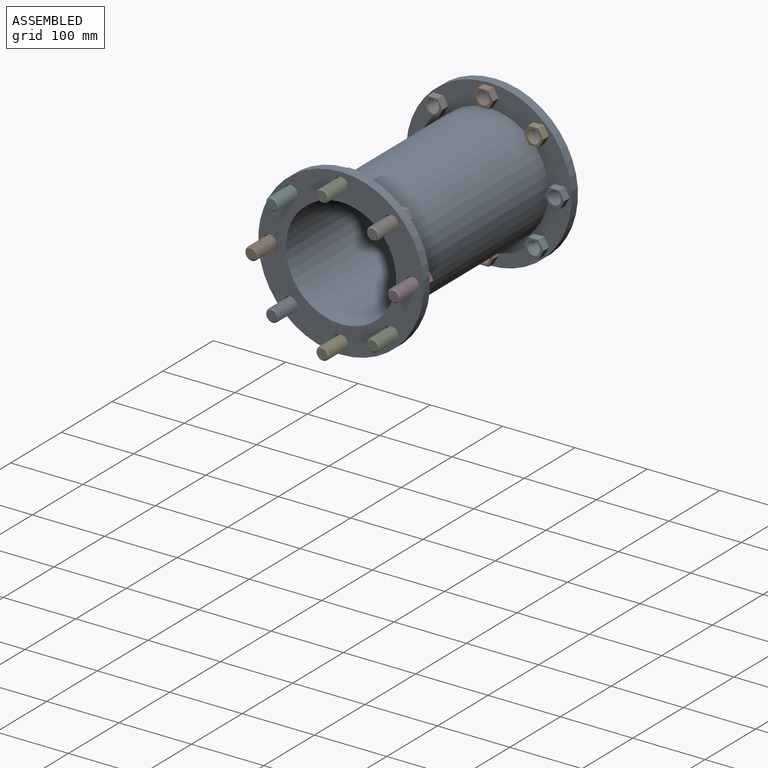
[diagram: assembled view]
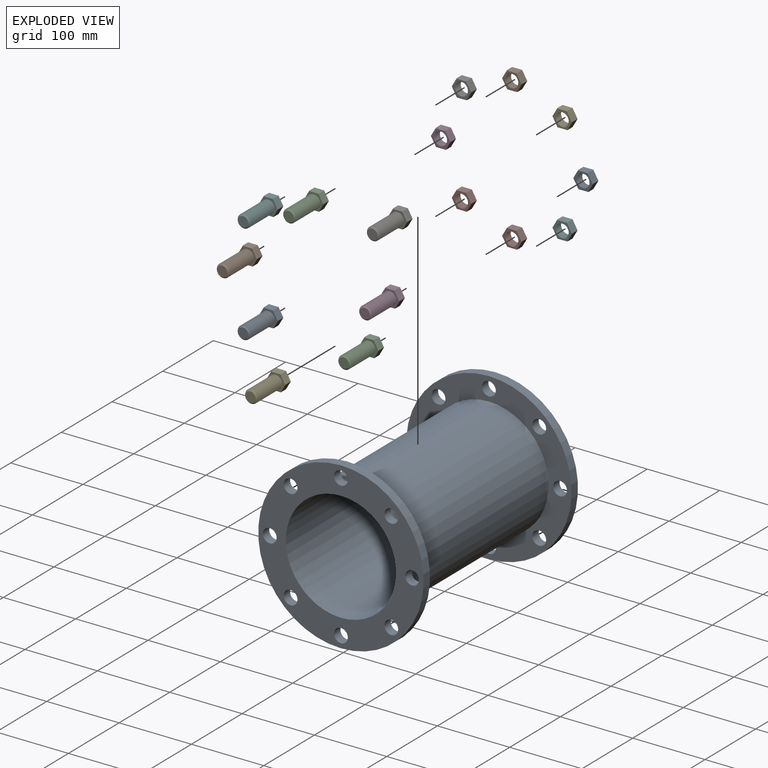
[diagram: exploded view]
GUIDED TOUR — MATED ASSEMBLY (Onshape document 5829d806961f70108c590262, AutoMate assembly 5829d806961f70108c590262_4ca33e75b5c4c5d74f9c8b82_9abe8e6fe6ce66651879bea8_default)

This assembly has 17 components, labeled P0..P16 below (a component is one placed occurrence of a part; the same part can appear more than once), held together by 16 mates. A mate is a constraint between two components; its type names the relative motion it leaves free:
  FASTENED — locks the two components together rigidly (no relative motion).
Axis/direction vectors are unit vectors and 'through' points are millimeter coordinates, both in the assembly's world frame.

MATES
  1. FASTENED "BoltSnap09": P4 <-> P0, direction (0.000, -1.000, 0.000) through (0.00, -292.10, -98.43) mm
  2. FASTENED "BoltSnap16": P8 <-> P0, direction (0.000, -1.000, 0.000) through (-69.60, -292.10, -69.60) mm
  3. FASTENED "BoltSnap14": P13 <-> P0, direction (0.000, -1.000, 0.000) through (-69.60, -292.10, 69.60) mm
  4. FASTENED "NutSnap02": P9 <-> P0, direction (0.000, 1.000, 0.000) through (0.00, -12.70, 98.43) mm
  5. FASTENED "NutSnap03": P12 <-> P0, direction (0.000, 1.000, 0.000) through (69.60, -12.70, 69.60) mm
  6. FASTENED "NutSnap07": P7 <-> P0, direction (0.000, 1.000, 0.000) through (-69.60, -12.70, -69.60) mm
  7. FASTENED "BoltSnap13": P10 <-> P0, direction (0.000, -1.000, 0.000) through (0.00, -292.10, 98.43) mm
  8. FASTENED "NutSnap05": P5 <-> P0, direction (0.000, 1.000, 0.000) through (69.60, -12.70, -69.60) mm
  9. FASTENED "NutSnap06": P15 <-> P0, direction (0.000, 1.000, 0.000) through (0.00, -12.70, -98.43) mm
  10. FASTENED "BoltSnap11": P3 <-> P0, direction (0.000, -1.000, 0.000) through (98.43, -292.10, 0.00) mm
  11. FASTENED "NutSnap01": P6 <-> P0, direction (0.000, 1.000, 0.000) through (-69.60, -12.70, 69.60) mm
  12. FASTENED "NutSnap04": P16 <-> P0, direction (0.000, 1.000, 0.000) through (98.43, -12.70, 0.00) mm
  13. FASTENED "BoltSnap15": P1 <-> P0, direction (0.000, -1.000, 0.000) through (-98.43, -292.10, 0.00) mm
  14. FASTENED "BoltSnap10": P2 <-> P0, direction (0.000, -1.000, 0.000) through (69.60, -292.10, -69.60) mm
  15. FASTENED "BoltSnap12": P14 <-> P0, direction (0.000, -1.000, 0.000) through (69.60, -292.10, 69.60) mm
  16. FASTENED "NutSnap08": P11 <-> P0, direction (0.000, 1.000, 0.000) through (-98.43, -12.70, 0.00) mm

ASSEMBLY ORDER
  1. P14 — the base component [order verified]
  2. P13 [order verified]
  3. P8 [order verified]
  4. P2 [order verified]
  5. P10 [order verified]
  6. P4 [order verified]
  7. P3 [order verified]
  8. P1 [order verified]
  9. P0 [order verified]
  10. P12 [order verified]
  11. P7 [order verified]
  12. P6 [order verified]
  13. P5 [order verified]
  14. P16 [order verified]
  15. P11 [order verified]
  16. P15 [order verified]
  17. P9 [order verified]
Order-tag legend:
  [order verified] — this step's position reverses a verified removal order: the component was checked to insert without passing through the ones already placed.

Of the 17 components, 1 carries the full construction recipe — the FeatureScript program that regenerates the part's solid from scratch; the rest are supplied as boundary geometry only.
Because this assembly has more than 12 components, the tour below covers the 12 most significant ones individually (every recipe-attached component first, then the largest by part volume), in assembly order; the remaining 5 are summarized together in a grouped section at the end.
Each toured component is shown spotlighted twice — in the assembled view, then in the exploded view, where a leader line traces a displaced component back to its assembled socket (saturated green if recipe-attached, orange if geometry-only; every other component desaturated gray) — followed by its recipe or geometry summary and the mates that hold it.
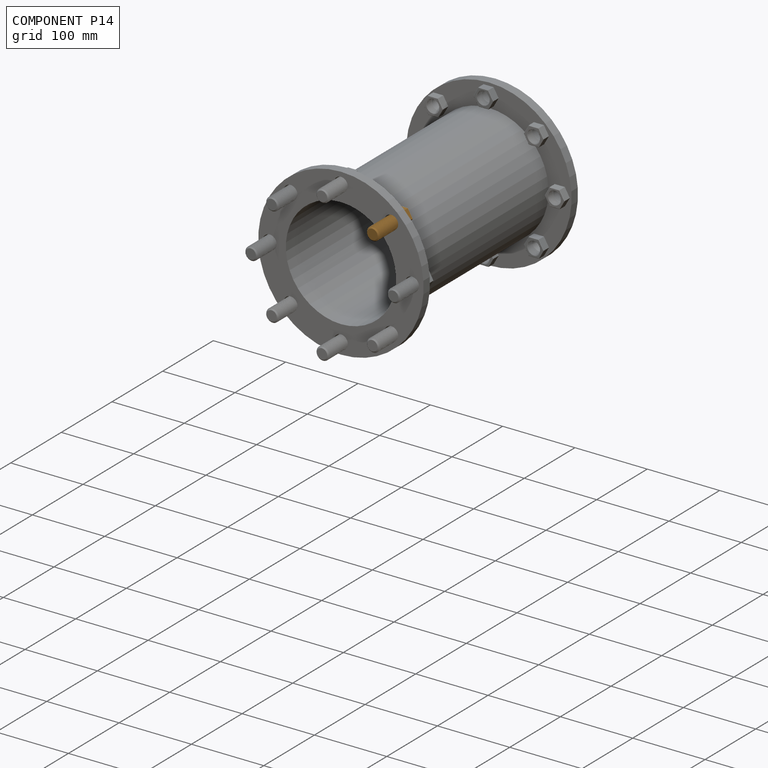
[diagram: component P14 — assembled]
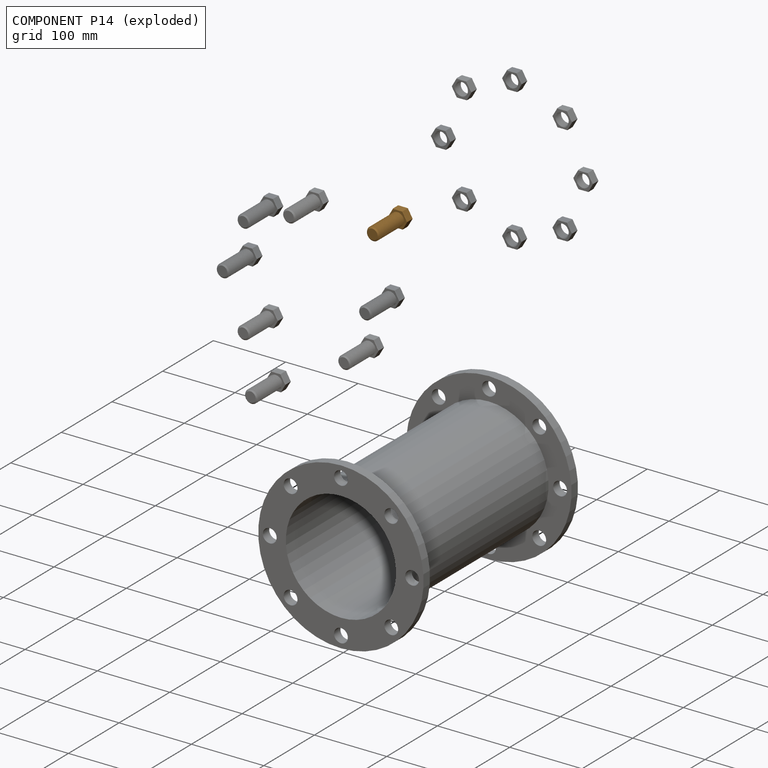
[diagram: component P14 — exploded]
COMPONENT P14 — geometry summary (no construction recipe available for this part):
  bounding box: 61.7 x 26.6 x 23.0 mm
  B-rep topology: 1 solid, 26 faces, 114 edges
  volume: 15439 mm^3 (41% of its bounding box)
Held by: FASTENED mate "BoltSnap12" to P0.
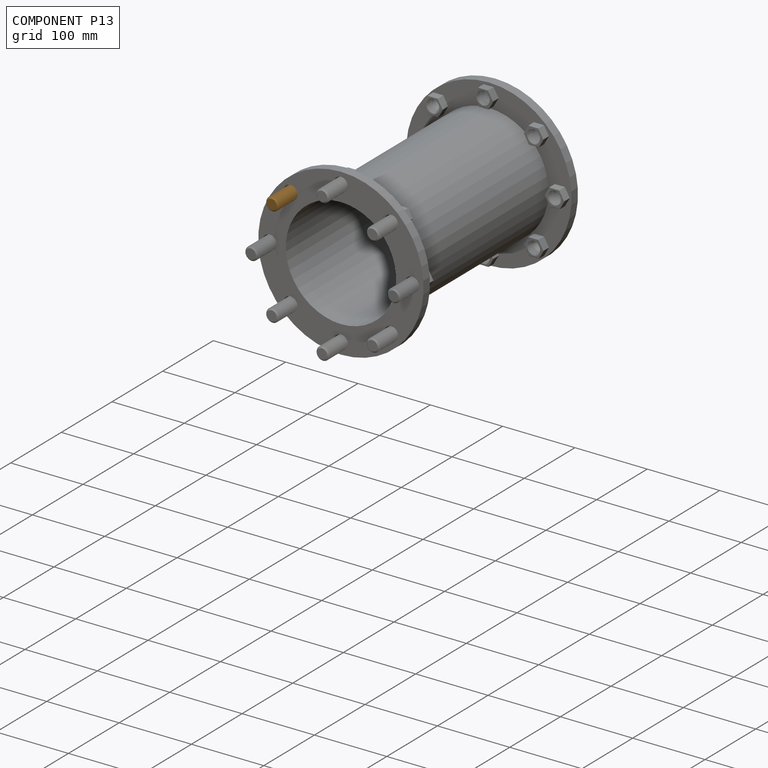
[diagram: component P13 — assembled]
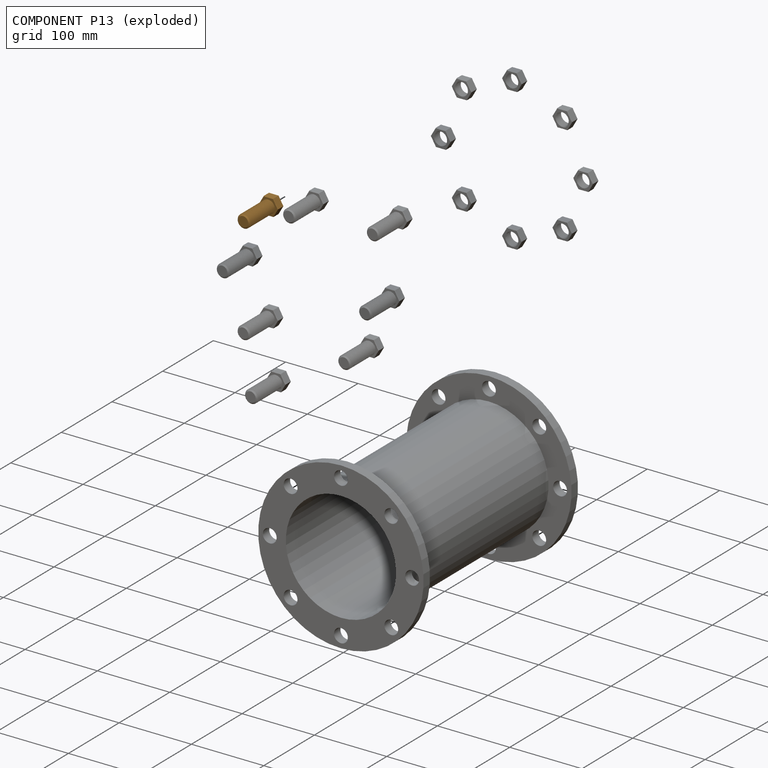
[diagram: component P13 — exploded]
COMPONENT P13 — geometry summary (no construction recipe available for this part):
  bounding box: 61.7 x 26.6 x 23.0 mm
  B-rep topology: 1 solid, 26 faces, 114 edges
  volume: 15439 mm^3 (41% of its bounding box)
Held by: FASTENED mate "BoltSnap14" to P0.
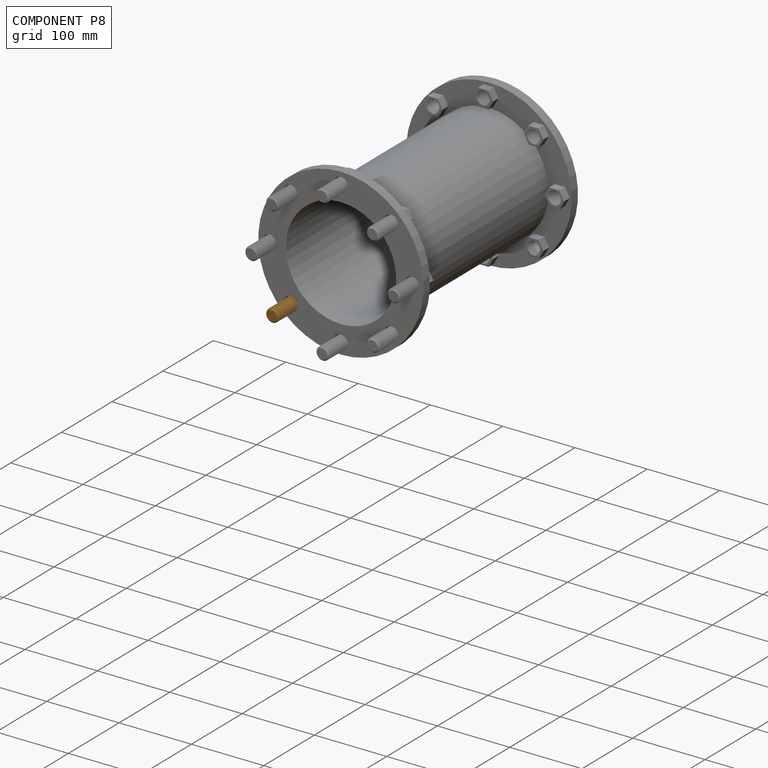
[diagram: component P8 — assembled]
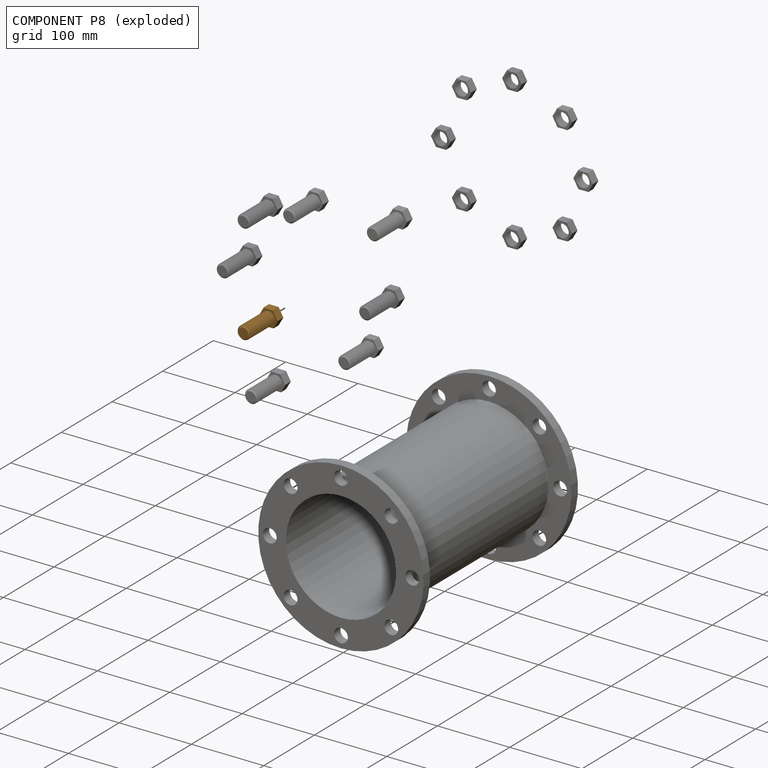
[diagram: component P8 — exploded]
COMPONENT P8 — geometry summary (no construction recipe available for this part):
  bounding box: 61.7 x 26.6 x 23.0 mm
  B-rep topology: 1 solid, 26 faces, 114 edges
  volume: 15439 mm^3 (41% of its bounding box)
Held by: FASTENED mate "BoltSnap16" to P0.
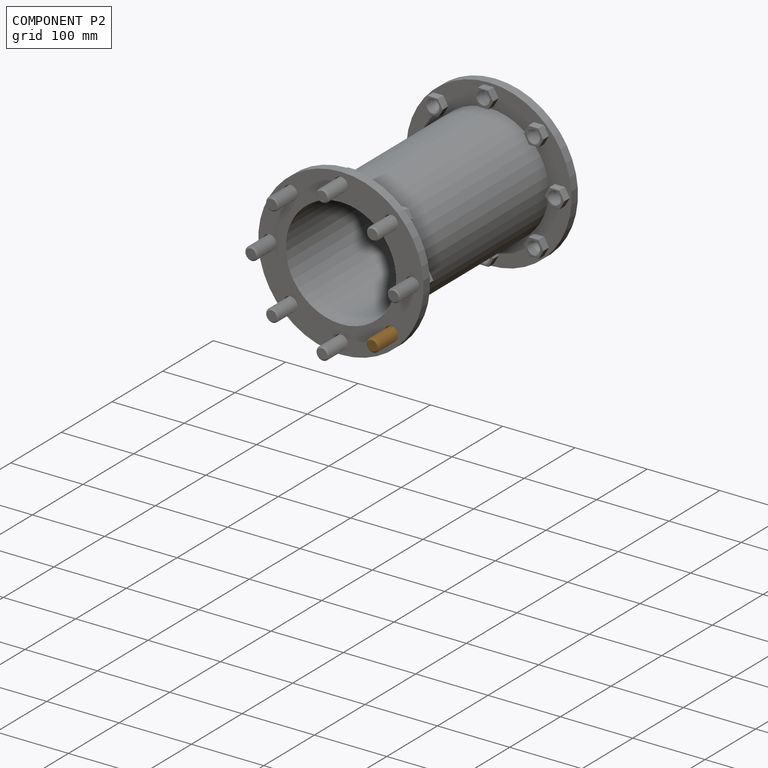
[diagram: component P2 — assembled]
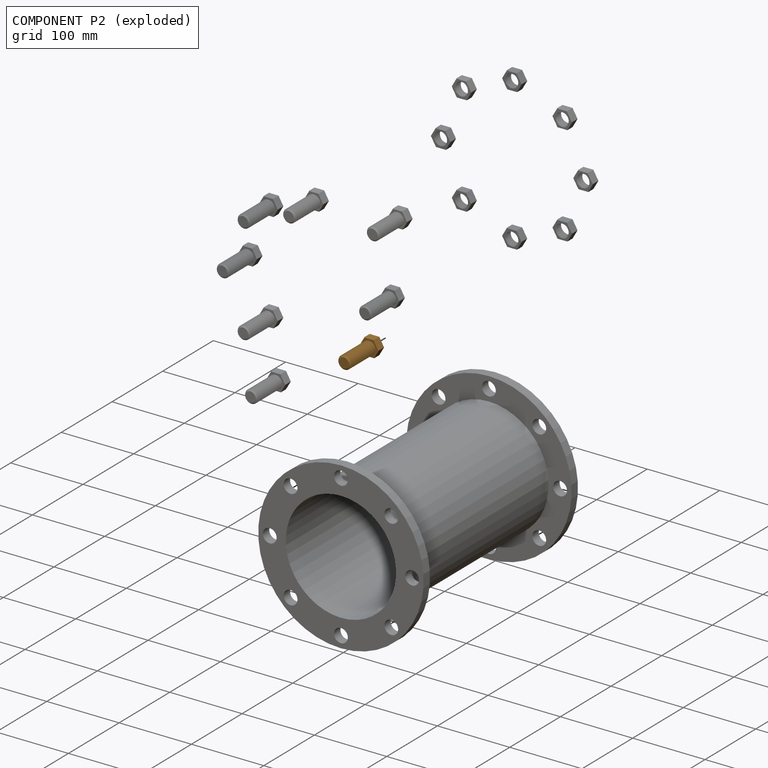
[diagram: component P2 — exploded]
COMPONENT P2 — geometry summary (no construction recipe available for this part):
  bounding box: 61.7 x 26.6 x 23.0 mm
  B-rep topology: 1 solid, 26 faces, 114 edges
  volume: 15439 mm^3 (41% of its bounding box)
Held by: FASTENED mate "BoltSnap10" to P0.
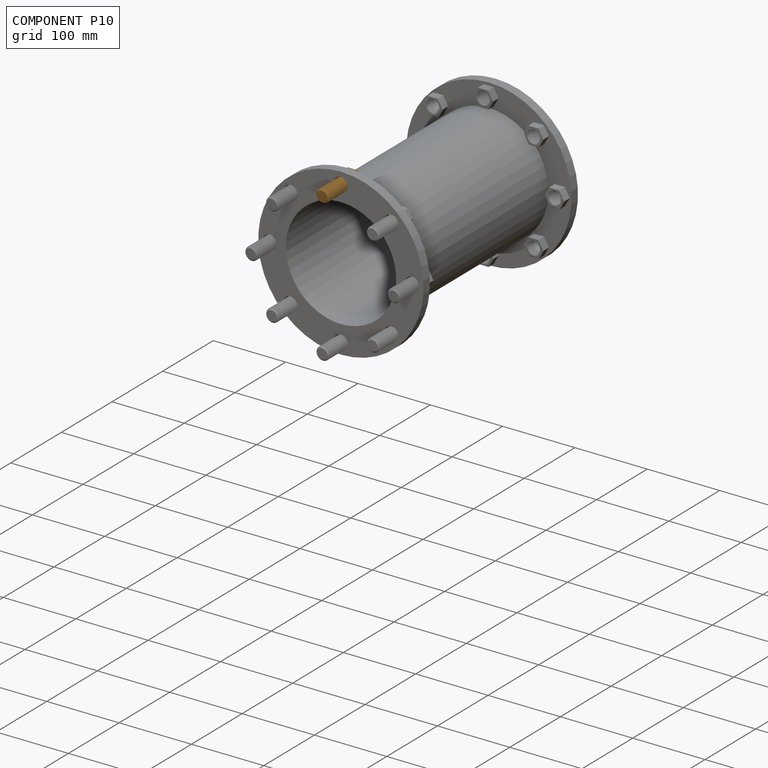
[diagram: component P10 — assembled]
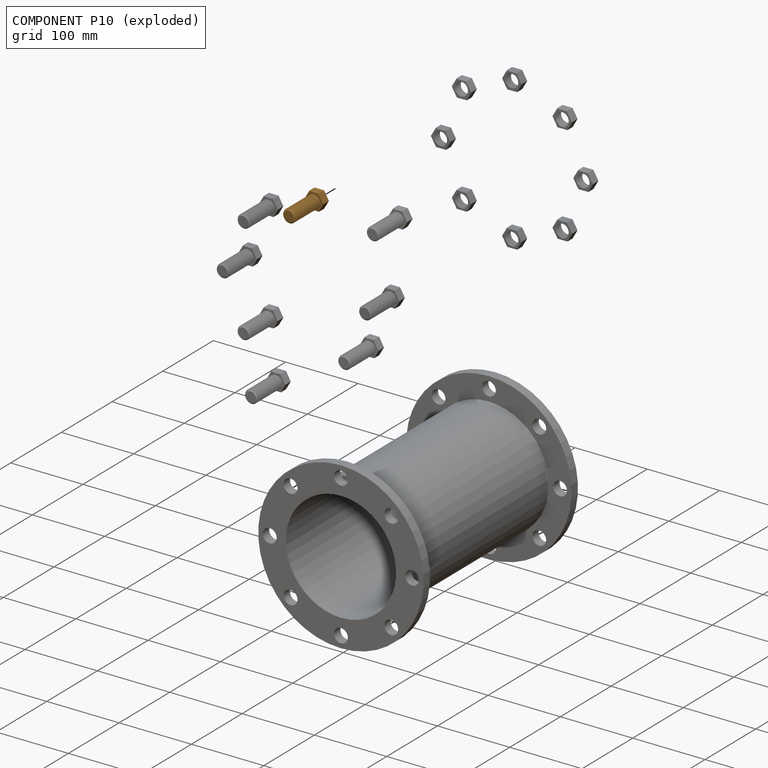
[diagram: component P10 — exploded]
COMPONENT P10 — geometry summary (no construction recipe available for this part):
  bounding box: 61.7 x 26.6 x 23.0 mm
  B-rep topology: 1 solid, 26 faces, 114 edges
  volume: 15439 mm^3 (41% of its bounding box)
Held by: FASTENED mate "BoltSnap13" to P0.
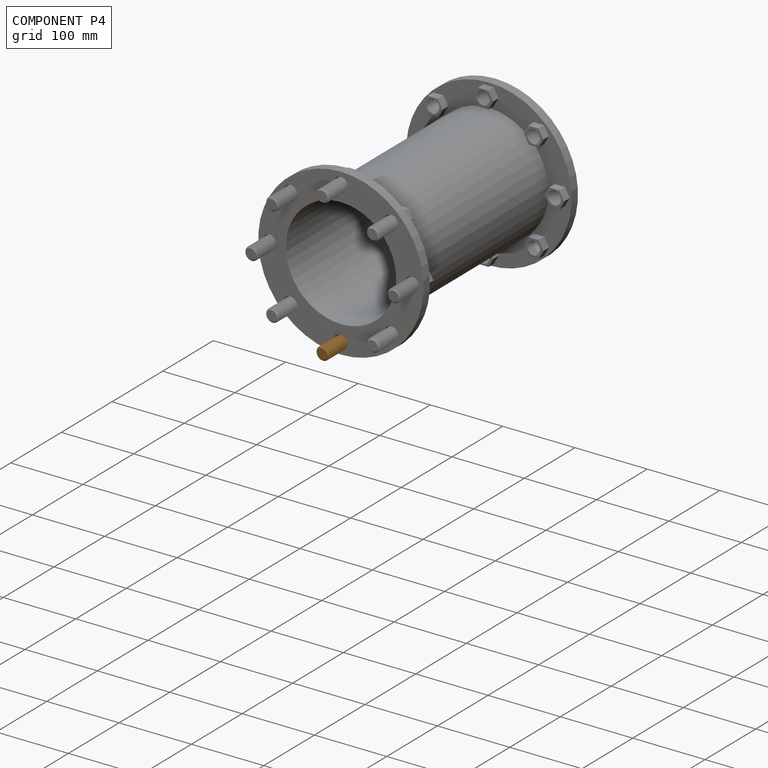
[diagram: component P4 — assembled]
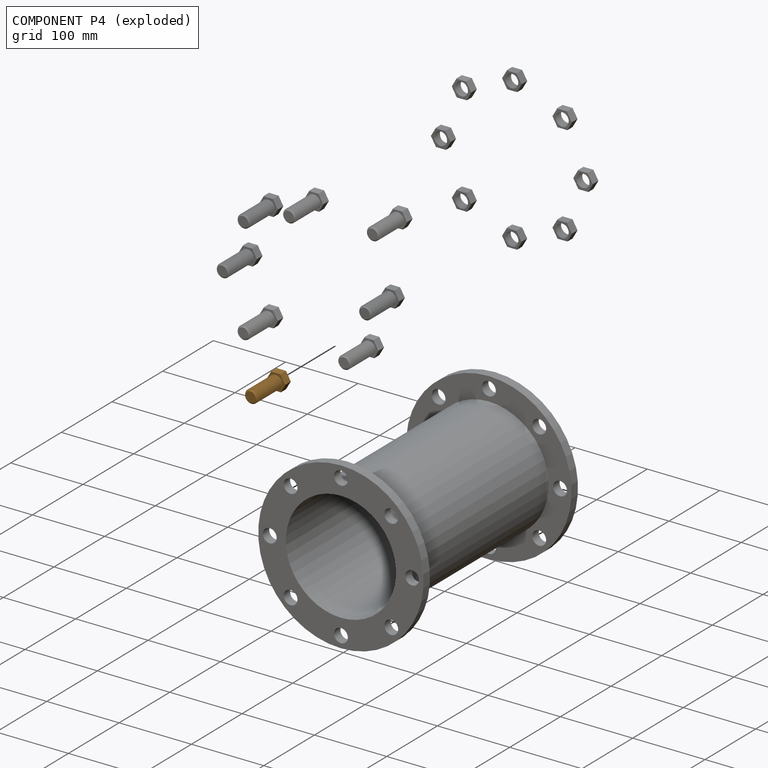
[diagram: component P4 — exploded]
COMPONENT P4 — geometry summary (no construction recipe available for this part):
  bounding box: 61.7 x 26.6 x 23.0 mm
  B-rep topology: 1 solid, 26 faces, 114 edges
  volume: 15439 mm^3 (41% of its bounding box)
Held by: FASTENED mate "BoltSnap09" to P0.
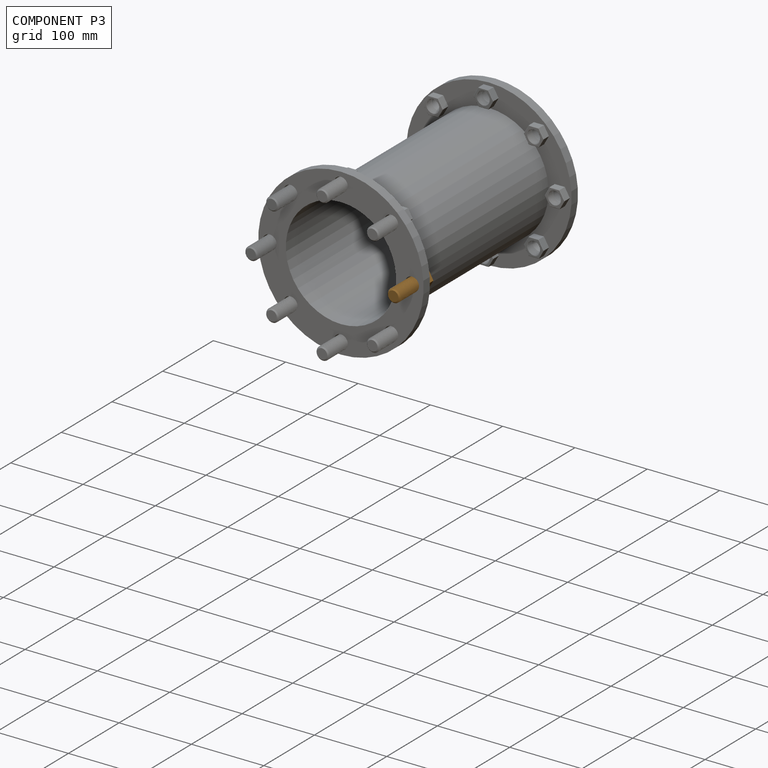
[diagram: component P3 — assembled]
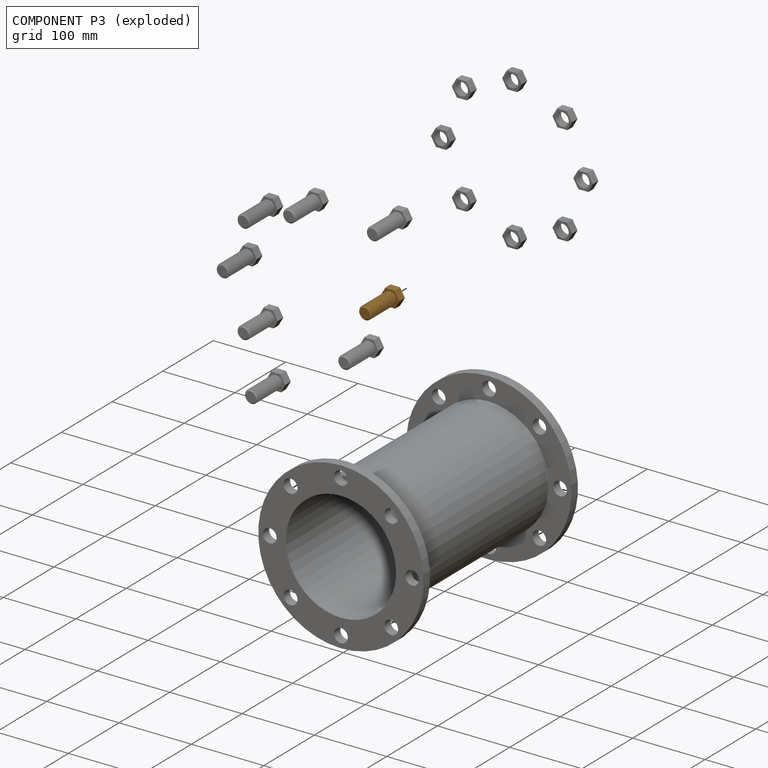
[diagram: component P3 — exploded]
COMPONENT P3 — geometry summary (no construction recipe available for this part):
  bounding box: 61.7 x 26.6 x 23.0 mm
  B-rep topology: 1 solid, 26 faces, 114 edges
  volume: 15439 mm^3 (41% of its bounding box)
Held by: FASTENED mate "BoltSnap11" to P0.
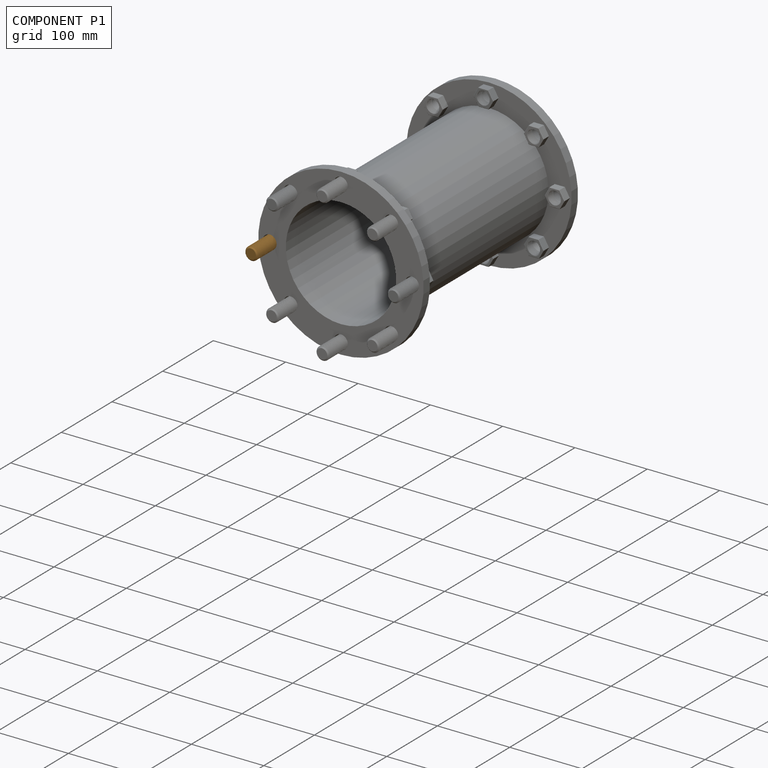
[diagram: component P1 — assembled]
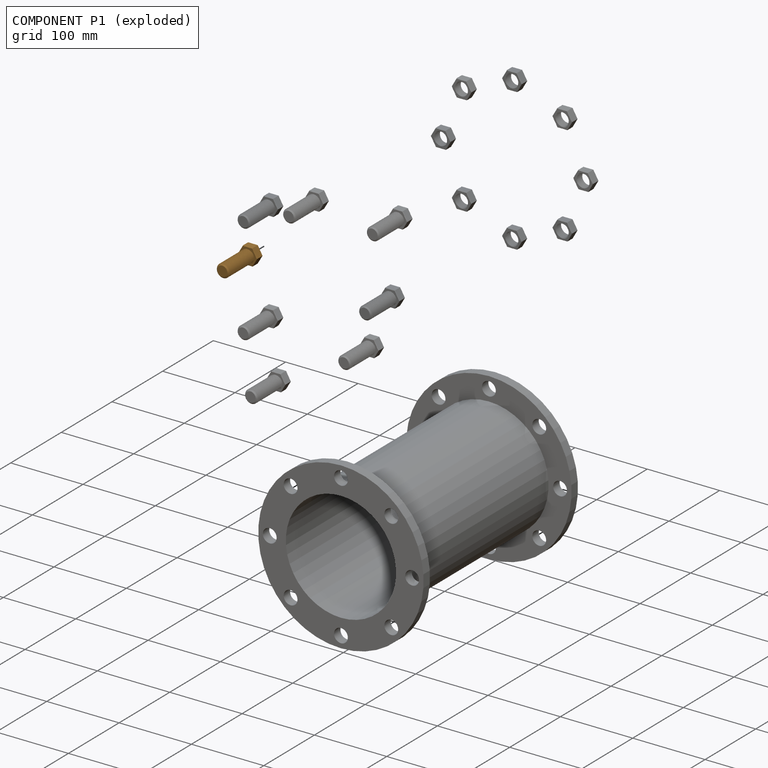
[diagram: component P1 — exploded]
COMPONENT P1 — geometry summary (no construction recipe available for this part):
  bounding box: 61.7 x 26.6 x 23.0 mm
  B-rep topology: 1 solid, 26 faces, 114 edges
  volume: 15439 mm^3 (41% of its bounding box)
Held by: FASTENED mate "BoltSnap15" to P0.
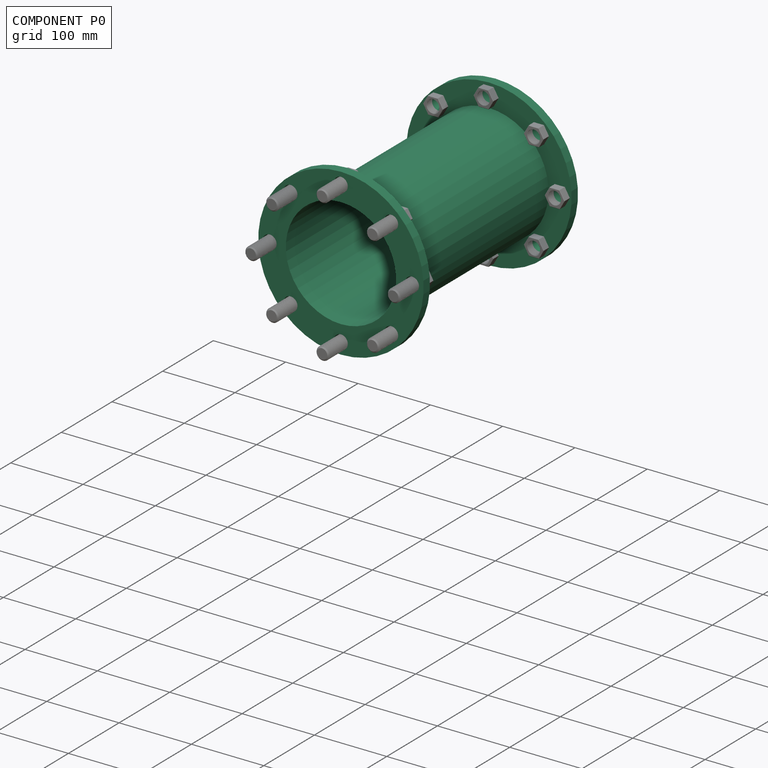
[diagram: component P0 — assembled]
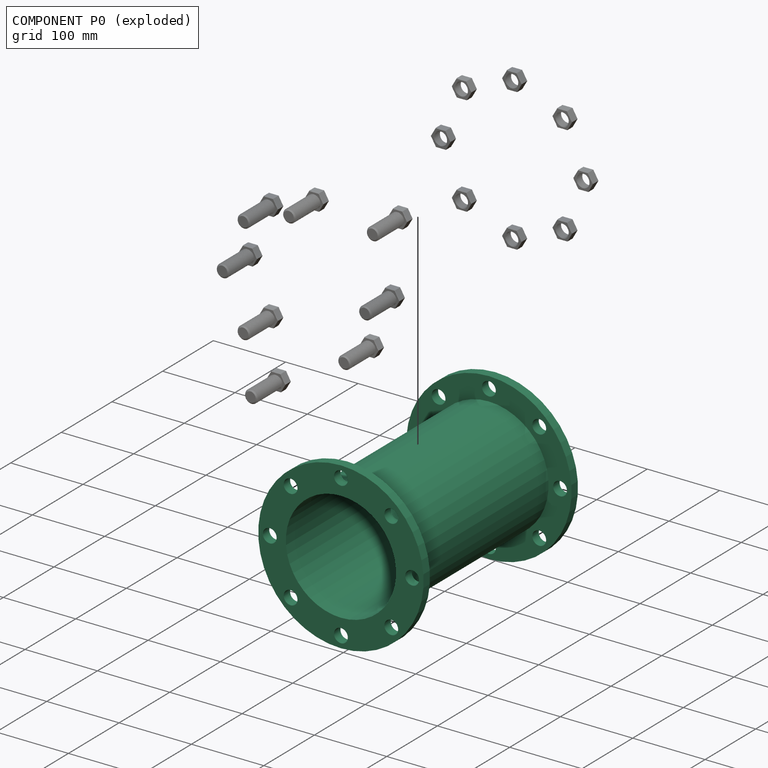
[diagram: component P0 — exploded]
COMPONENT P0 — recipe-attached (CADFS 00328216, mesh-verified: the recipe's output STEP matches this component's geometry to below the mesh-comparison resolution (tessellation chordal tolerance ~0.666 mm)).
Held by: FASTENED mate "BoltSnap09" to P4; FASTENED mate "BoltSnap16" to P8; FASTENED mate "BoltSnap14" to P13; FASTENED mate "NutSnap02" to P9; FASTENED mate "NutSnap03" to P12; FASTENED mate "NutSnap07" to P7; FASTENED mate "BoltSnap13" to P10; FASTENED mate "NutSnap05" to P5; FASTENED mate "NutSnap06" to P15; FASTENED mate "BoltSnap11" to P3; FASTENED mate "NutSnap01" to P6; FASTENED mate "NutSnap04" to P16; FASTENED mate "BoltSnap15" to P1; FASTENED mate "BoltSnap10" to P2; FASTENED mate "BoltSnap12" to P14; FASTENED mate "NutSnap08" to P11.
Construction recipe (FeatureScript — the CAD program that rebuilds this solid; sketch coordinates are in the units given by the * unit suffixes, e.g. mm):

FeatureScript 1511;
import(path : "onshape/std/geometry.fs", version : "1511.0");
import(path : "onshape/std/common.fs", version : "1511.0");
const mm = millimeter;
const VERTEX = EntityType.VERTEX;
const EDGE = EntityType.EDGE;
const FACE = EntityType.FACE;
const BODY = EntityType.BODY;
function v(x, y){return vector(x, y);}
function OD(order){return orderDisambiguation(order);}
function OSD(set){return originalSetDisambiguation(set);}
function TD(topology){return topologyDisambiguation(topology);}
function TDD(query){return trueDependencyDisambiguation(query);}
function sQuery(a, b, c) {return sketchEntityQuery(a, b, c);}

annotation { "Feature Type Name" : "Feature", "Feature Type Description" : "" }
export const myFeature = defineFeature(function(context is Context, id is Id, definition is map)
    precondition{}
    {
        {
            var Q0;
            Q0=qCreatedBy(makeId("Right.planeOp"),FACE);
            var sketch = newSketch(context, id + "F0", { "sketchPlane" : qUnion([Q0])});
            skLineSegment(sketch, "E0", {"start": v(-372.41, 0) * mm, "end": v(512.39, 0) * mm, "construction": true});
            skLineSegment(sketch, "E1", {"start": v(0, 114.3) * mm, "end": v(-12.7, 114.3) * mm});
            skLineSegment(sketch, "E2", {"start": v(-12.7, 114.3) * mm, "end": v(-12.7, 82.55) * mm});
            skLineSegment(sketch, "E3", {"start": v(-12.7, 82.55) * mm, "end": v(-292.1, 82.55) * mm});
            skLineSegment(sketch, "E4", {"start": v(-292.1, 82.55) * mm, "end": v(-292.1, 114.3) * mm});
            skLineSegment(sketch, "E5", {"start": v(-292.1, 114.3) * mm, "end": v(-304.8, 114.3) * mm});
            skLineSegment(sketch, "E6", {"start": v(-304.8, 76.2) * mm, "end": v(0, 76.2) * mm});
            skLineSegment(sketch, "E7", {"start": v(-304.8, 114.3) * mm, "end": v(-304.8, 76.2) * mm});
            skLineSegment(sketch, "E8", {"start": v(0, 114.3) * mm, "end": v(0, 76.2) * mm});
            skSolve(sketch);
        }
        {
            var Q0;
            Q0=makeQuery(id+"F0.imprint","IMPRINT",FACE,{"disambiguationData":[TD([[makeQuery(id+"F0.imprint","IMPRINT",EDGE,{"derivedFrom":sQuery(id+"F0.wireOp",EDGE,"E1")}),1.0]])]});
            var Q1;
            Q1=sQuery(id+"F0.wireOp",EDGE,"E0");
            revolve(context, id + "F1", {"entities" : qUnion([Q0]), "axis" : qUnion([Q1]), "revolveType" : RevolveType.FULL});
        }
        {
            var Q0;
            Q0=makeQuery(id+"F1.opRevolve","SWEPT_FACE",FACE,{"disambiguationData":[OSD([sQuery(id+"F0.wireOp",EDGE,"E7")])]});
            cPlane(context, id + "F2", {"entities" : qUnion([Q0]), "cplaneType" : CPlaneType.OFFSET, "offset" : 0 * mm, "width" : 152.4 * mm, "height" : 152.4 * mm});
        }
        {
            var Q0;
            Q0=qCreatedBy(id+"F2.planeOp",FACE);
            var sketch = newSketch(context, id + "F3", { "sketchPlane" : qUnion([Q0])});
            skCircle(sketch, "E9", {"center": v(0, 0) * mm, "radius": 98.43 * mm, "construction": true});
            skCircle(sketch, "E10", {"center": v(0, 98.43) * mm, "radius": 9.53 * mm});
            skCircle(sketch, "E11.1.0", {"center": v(-69.6, 69.6) * mm, "radius": 9.53 * mm});
            skCircle(sketch, "E11.2.0", {"center": v(-98.43, 0) * mm, "radius": 9.53 * mm});
            skCircle(sketch, "E11.3.0", {"center": v(-69.6, -69.6) * mm, "radius": 9.53 * mm});
            skCircle(sketch, "E11.4.0", {"center": v(0, -98.43) * mm, "radius": 9.53 * mm});
            skCircle(sketch, "E11.5.0", {"center": v(69.6, -69.6) * mm, "radius": 9.53 * mm});
            skCircle(sketch, "E11.6.0", {"center": v(98.43, 0) * mm, "radius": 9.53 * mm});
            skCircle(sketch, "E11.7.0", {"center": v(69.6, 69.6) * mm, "radius": 9.53 * mm});
            skSolve(sketch);
        }
        {
            var Q0;
            Q0=qSketchRegion(id+"F3",true);
            extrude(context, id + "F4", {"entities" : qUnion([Q0]), "operationType" : NewBodyOperationType.REMOVE, "endBound" : BoundingType.THROUGH_ALL, "oppositeDirection" : true, "depth" : 635 * mm});
        }
    });
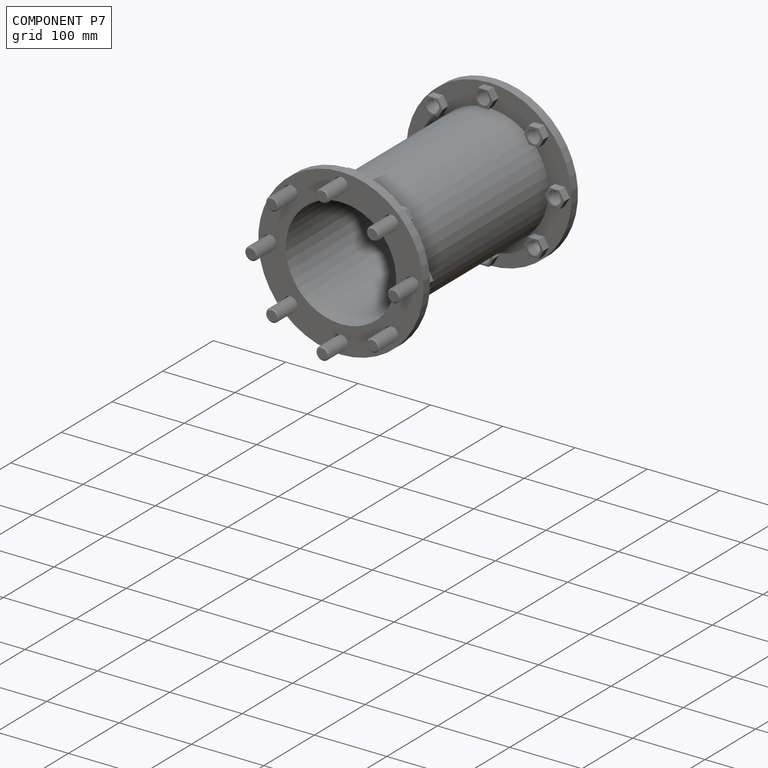
[diagram: component P7 — assembled]
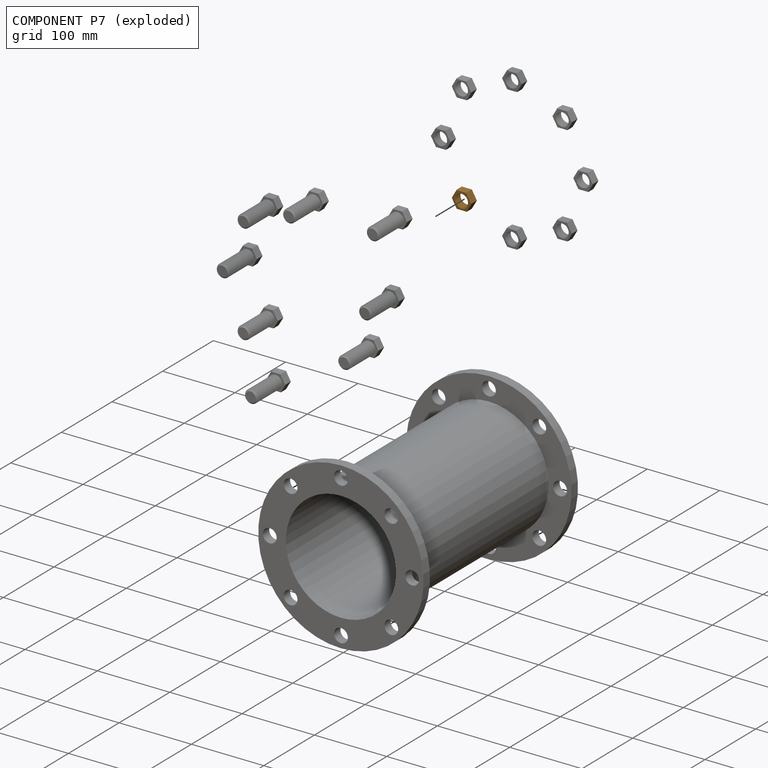
[diagram: component P7 — exploded]
COMPONENT P7 — geometry summary (no construction recipe available for this part):
  bounding box: 27.7 x 24.0 x 12.6 mm
  B-rep topology: 1 solid, 23 faces, 102 edges
  volume: 2575 mm^3 (31% of its bounding box)
Held by: FASTENED mate "NutSnap07" to P0.
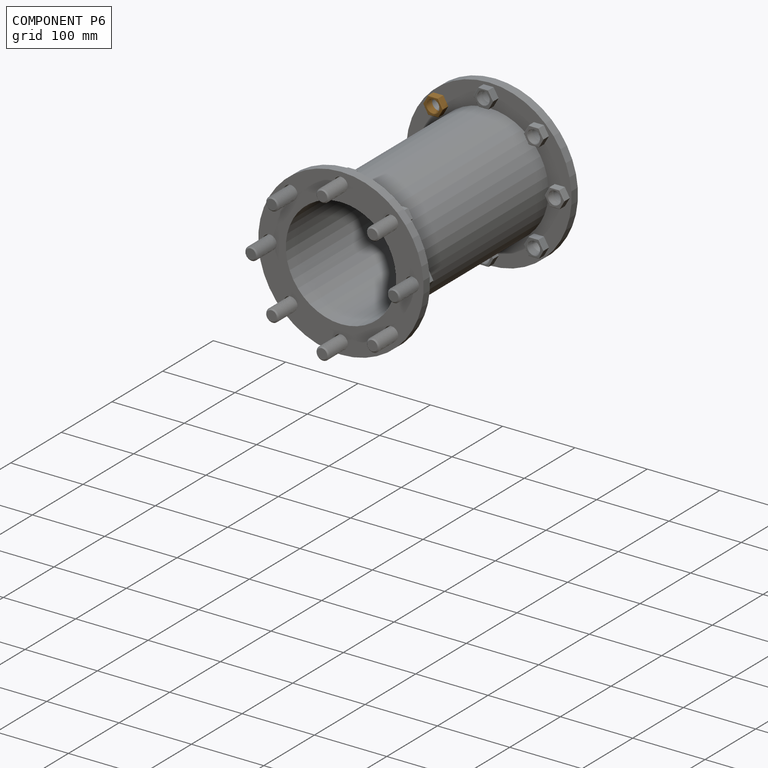
[diagram: component P6 — assembled]
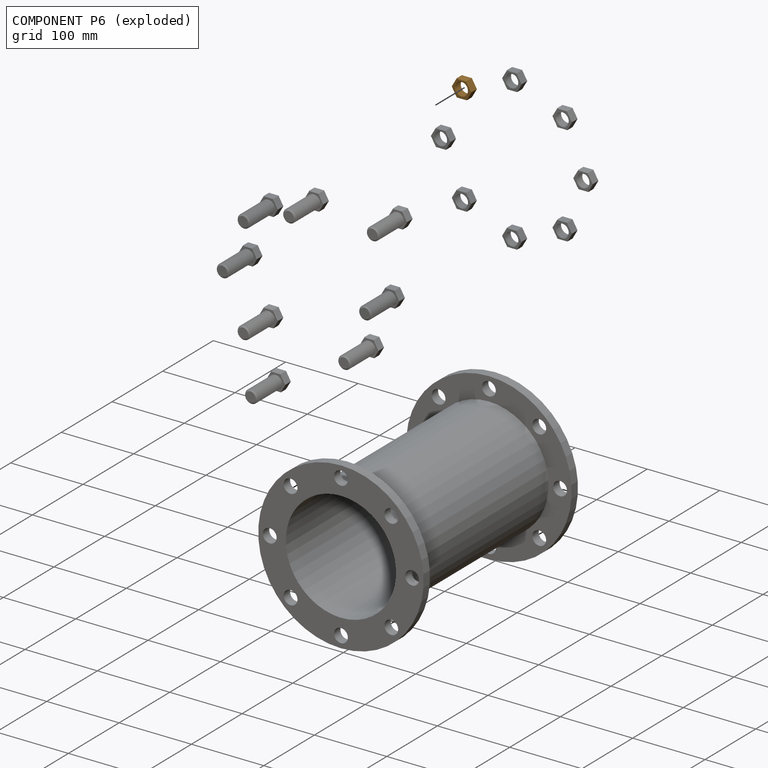
[diagram: component P6 — exploded]
COMPONENT P6 — geometry summary (no construction recipe available for this part):
  bounding box: 27.7 x 24.0 x 12.6 mm
  B-rep topology: 1 solid, 23 faces, 102 edges
  volume: 2575 mm^3 (31% of its bounding box)
Held by: FASTENED mate "NutSnap01" to P0.
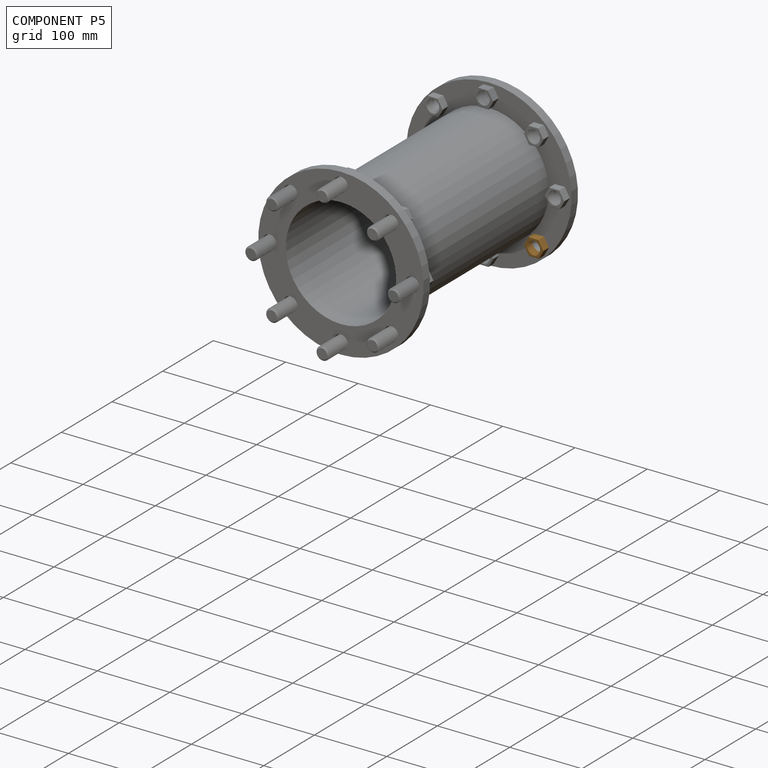
[diagram: component P5 — assembled]
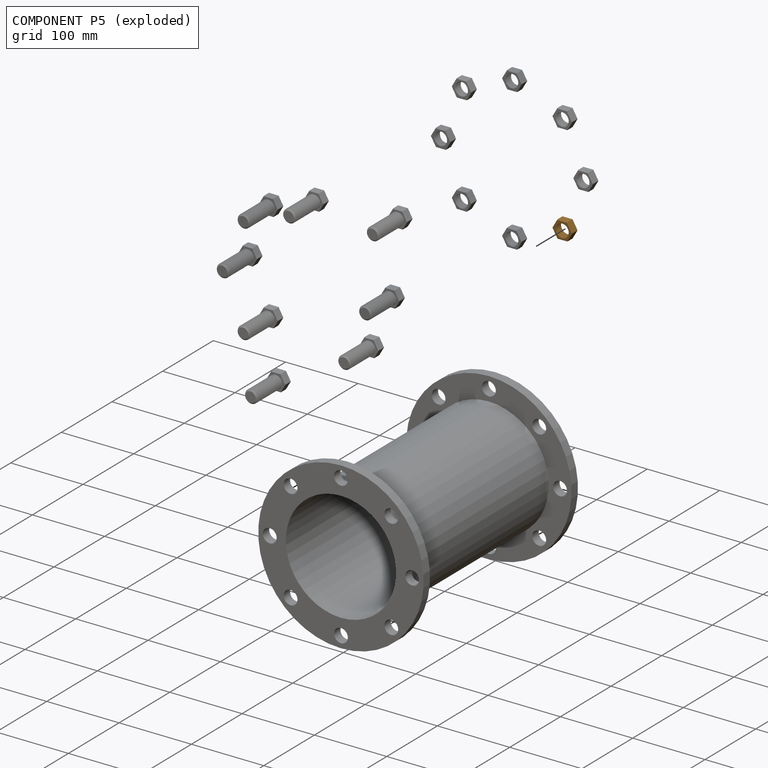
[diagram: component P5 — exploded]
COMPONENT P5 — geometry summary (no construction recipe available for this part):
  bounding box: 27.7 x 24.0 x 12.6 mm
  B-rep topology: 1 solid, 23 faces, 102 edges
  volume: 2575 mm^3 (31% of its bounding box)
Held by: FASTENED mate "NutSnap05" to P0.
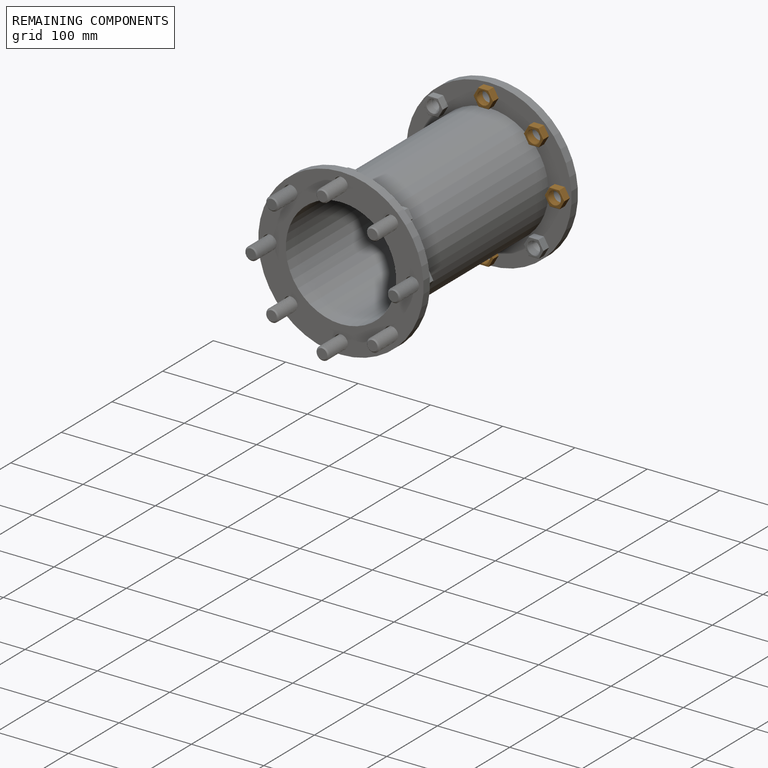
[diagram: remaining components — assembled]
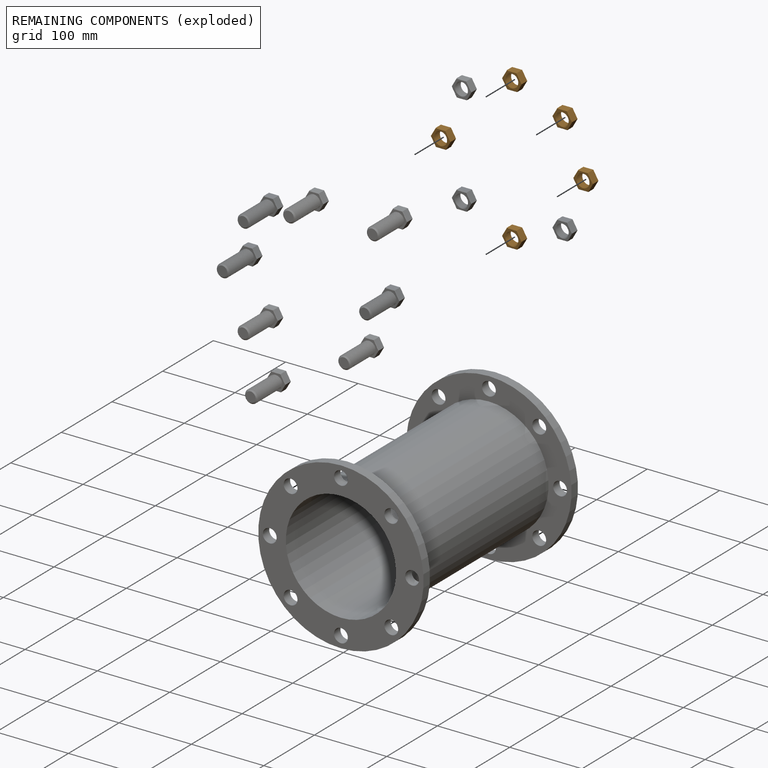
[diagram: remaining components — exploded]
REMAINING COMPONENTS (grouped) — the 5 components below fall outside the per-component tour by the significance rule stated above; both spotlight views highlight the whole group.
  P12: bounding box 27.7 x 24.0 x 12.6 mm, volume 2575 mm^3. Held by: FASTENED mate "NutSnap03" to P0.
  P16: bounding box 27.7 x 24.0 x 12.6 mm, volume 2575 mm^3. Held by: FASTENED mate "NutSnap04" to P0.
  P11: bounding box 27.7 x 24.0 x 12.6 mm, volume 2575 mm^3. Held by: FASTENED mate "NutSnap08" to P0.
  P15: bounding box 27.7 x 24.0 x 12.6 mm, volume 2575 mm^3. Held by: FASTENED mate "NutSnap06" to P0.
  P9: bounding box 27.7 x 24.0 x 12.6 mm, volume 2575 mm^3. Held by: FASTENED mate "NutSnap02" to P0.
PROVENANCE & LICENSES
Assembly (occurrences, transforms, mates, per-part STEP geometry): AutoMate dataset, Zenodo record 7776208, CC0.
Construction recipes: CADFS (HuggingFace VladPyatov/CADFS, CC-BY-4.0, layered over the ABC dataset), FeatureScript reconstruction programs keyed by ABC model id.
Join: ABC meta listings map ABC model id -> Onshape documentId; within a shared document, parts are matched by geometric signature (bounding-box dims + volume at 0.1% relative tolerance, exact B-rep face/solid counts).
Verification: 1 of this assembly's 17 components carries a recipe attachment, and every attachment is mesh-verified: the CADFS STEP and the AutoMate member STEP were compared as meshes in their shared local frame (symmetric sampled-point-to-mesh distance); worst across the 1 attachment: below the mesh-comparison resolution (tessellation chordal tolerance ~0.666 mm) on a 444 mm part.
Renders: orthographic iso camera (az 35 / el 25); the floor grid conveys scale (grid pitch printed in each image; no ruler). In the exploded view each component is displaced by its stored offset vector: the offsets alone carry the explosion direction (mate normal/axis signs are not orientation cues and do not encode it), and separation distances are assigned per mate-chain, not proportionally to assembly-order depth.
